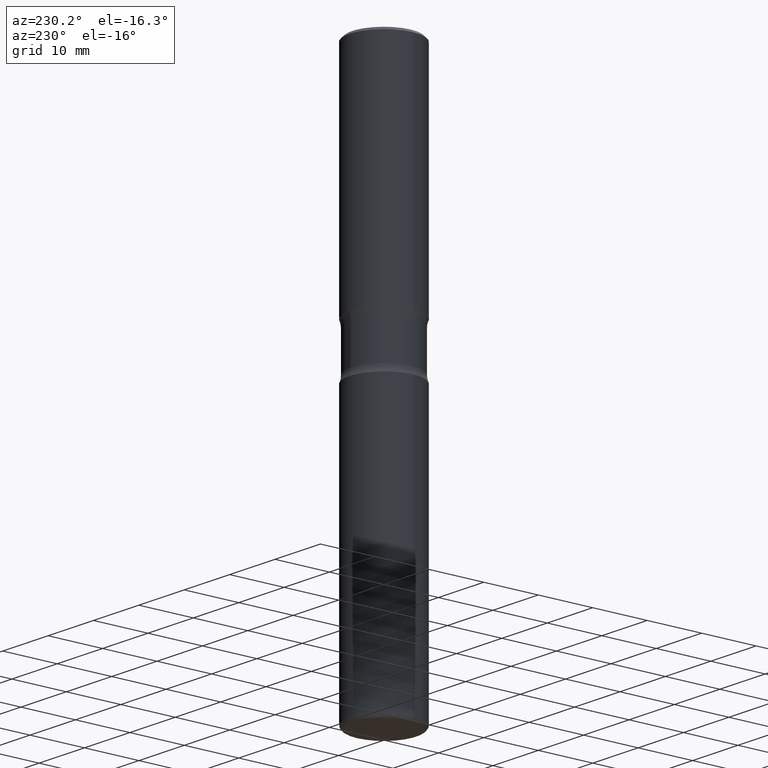
[diagram: clean part render]
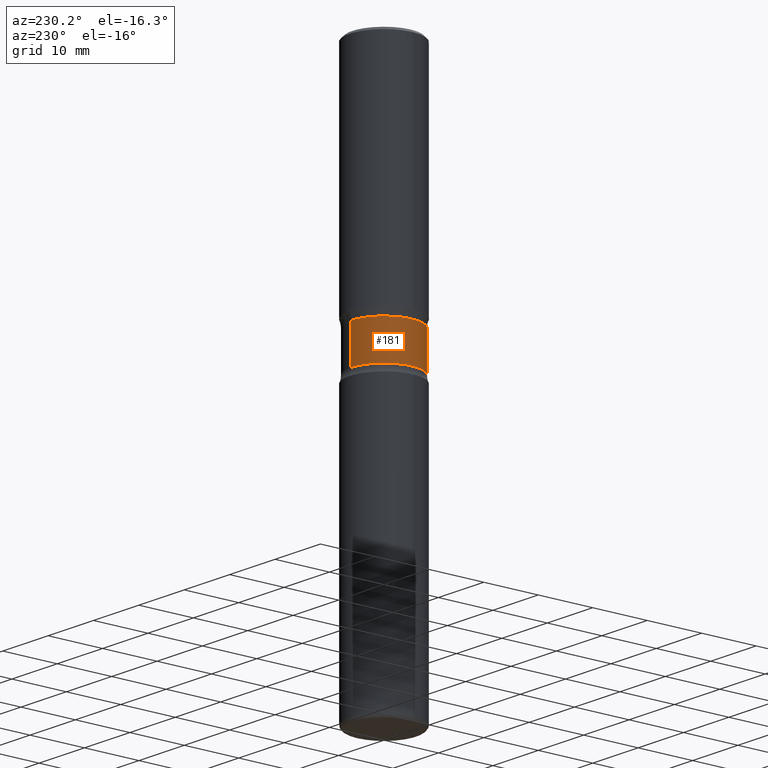
[diagram: same view with one face highlighted and labeled with its STEP entity id]
A machine part, auxiliary view. The second image highlights one B-rep face of the part: STEP entity #181.
In plain terms, the highlighted cylindrical surface (partial cylindrical patch) has radius 6.0706 mm, axis along (0, -0, -1).
Its self-contained STEP definition (entity closure, byte-faithful):
#1 = DIRECTION ( 'NONE',  ( 2.475275669592745842E-29, -3.448796213942141316E-15, -1.000000000000000000 ) ) ;
#39 = EDGE_CURVE ( 'NONE', #101, #119, #504, .T. ) ;
#69 = LINE ( 'NONE', #298, #178 ) ;
#73 = ORIENTED_EDGE ( 'NONE', *, *, #444, .F. ) ;
#82 = LINE ( 'NONE', #402, #134 ) ;
#92 = CARTESIAN_POINT ( 'NONE',  ( 9.841488951555764877E-29, -1.388055510557057537E-14, -4.000000000000000888 ) ) ;
#95 = CIRCLE ( 'NONE', #141, 0.2390000000000002123 ) ;
#101 = VERTEX_POINT ( 'NONE', #353 ) ;
#119 = VERTEX_POINT ( 'NONE', #355 ) ;
#122 = DIRECTION ( 'NONE',  ( 2.475275669592745562E-29, -3.448796213942141316E-15, -1.000000000000000000 ) ) ;
#123 = VERTEX_POINT ( 'NONE', #213 ) ;
#131 = CARTESIAN_POINT ( 'NONE',  ( 4.764020884690993624E-29, -6.806129876684274872E-15, -1.948726225026822467 ) ) ;
#134 = VECTOR ( 'NONE', #1, 39.37007874015748143 ) ;
#141 = AXIS2_PLACEMENT_3D ( 'NONE', #131, #529, #313 ) ;
#175 = FACE_OUTER_BOUND ( 'NONE', #176, .T. ) ;
#176 = EDGE_LOOP ( 'NONE', ( #73, #295, #193, #357 ) ) ;
#178 = VECTOR ( 'NONE', #429, 39.37007874015748143 ) ;
#181 = ADVANCED_FACE ( 'NONE', ( #175 ), #263, .T. ) ;
#193 = ORIENTED_EDGE ( 'NONE', *, *, #273, .T. ) ;
#213 = CARTESIAN_POINT ( 'NONE',  ( 1.668928079967066472E-15, 0.2389999999999934122, -1.948726225026823355 ) ) ;
#256 = EDGE_CURVE ( 'NONE', #330, #123, #95, .T. ) ;
#263 = CYLINDRICAL_SURFACE ( 'NONE', #306, 0.2390000000000001568 ) ;
#273 = EDGE_CURVE ( 'NONE', #119, #123, #82, .T. ) ;
#295 = ORIENTED_EDGE ( 'NONE', *, *, #39, .T. ) ;
#298 = CARTESIAN_POINT ( 'NONE',  ( -1.639659021467298523E-15, -0.2390000000000140346, -3.999999999999999556 ) ) ;
#305 = DIRECTION ( 'NONE',  ( 6.982962677686265133E-15, 1.000000000000000000, -3.429097899996980271E-15 ) ) ;
#306 = AXIS2_PLACEMENT_3D ( 'NONE', #92, #527, #363 ) ;
#313 = DIRECTION ( 'NONE',  ( 6.982962677686265133E-15, 1.000000000000000000, -3.429097899996980271E-15 ) ) ;
#330 = VERTEX_POINT ( 'NONE', #541 ) ;
#353 = CARTESIAN_POINT ( 'NONE',  ( -1.677391760455101849E-15, -0.2390000000000060687, -1.676273774973177533 ) ) ;
#355 = CARTESIAN_POINT ( 'NONE',  ( 1.668928079967059964E-15, 0.2389999999999943281, -1.676273774973179087 ) ) ;
#357 = ORIENTED_EDGE ( 'NONE', *, *, #256, .F. ) ;
#363 = DIRECTION ( 'NONE',  ( 6.982962677686266711E-15, 1.000000000000000000, -4.572130533329308080E-15 ) ) ;
#375 = AXIS2_PLACEMENT_3D ( 'NONE', #396, #122, #305 ) ;
#396 = CARTESIAN_POINT ( 'NONE',  ( 4.089625963952275315E-29, -5.866496898460006191E-15, -1.676273774973178199 ) ) ;
#402 = CARTESIAN_POINT ( 'NONE',  ( 1.668928079967117156E-15, 0.2389999999999863067, -4.000000000000001776 ) ) ;
#429 = DIRECTION ( 'NONE',  ( 2.475275669592745842E-29, -3.448796213942141316E-15, -1.000000000000000000 ) ) ;
#444 = EDGE_CURVE ( 'NONE', #101, #330, #69, .T. ) ;
#504 = CIRCLE ( 'NONE', #375, 0.2390000000000002123 ) ;
#527 = DIRECTION ( 'NONE',  ( 2.475275669592745562E-29, -3.448796213942141316E-15, -1.000000000000000000 ) ) ;
#529 = DIRECTION ( 'NONE',  ( 2.475275669592745562E-29, -3.448796213942141316E-15, -1.000000000000000000 ) ) ;
#541 = CARTESIAN_POINT ( 'NONE',  ( -1.677391760455093764E-15, -0.2390000000000070401, -1.948726225026821579 ) ) ;